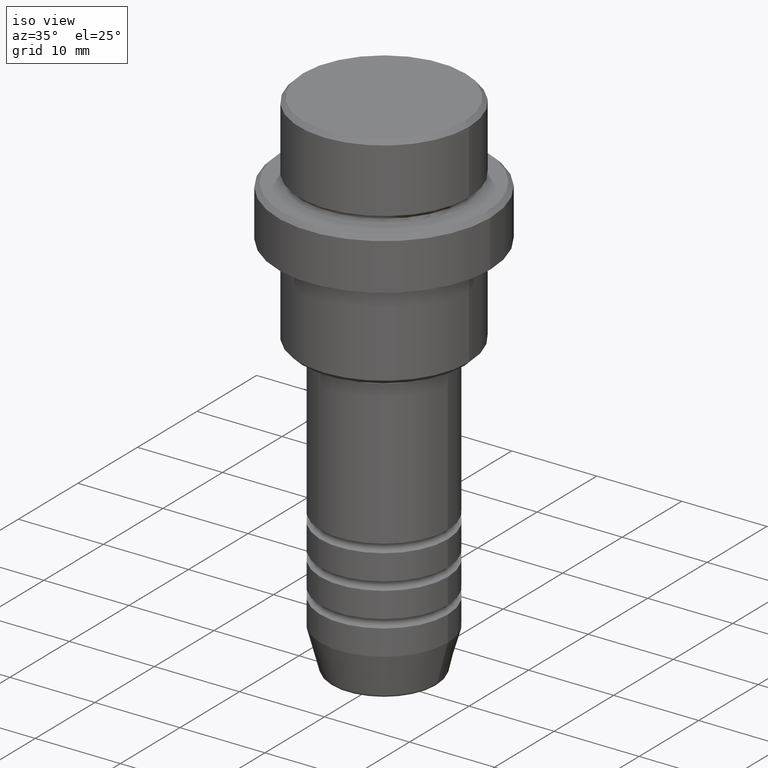
[diagram: clean part render]
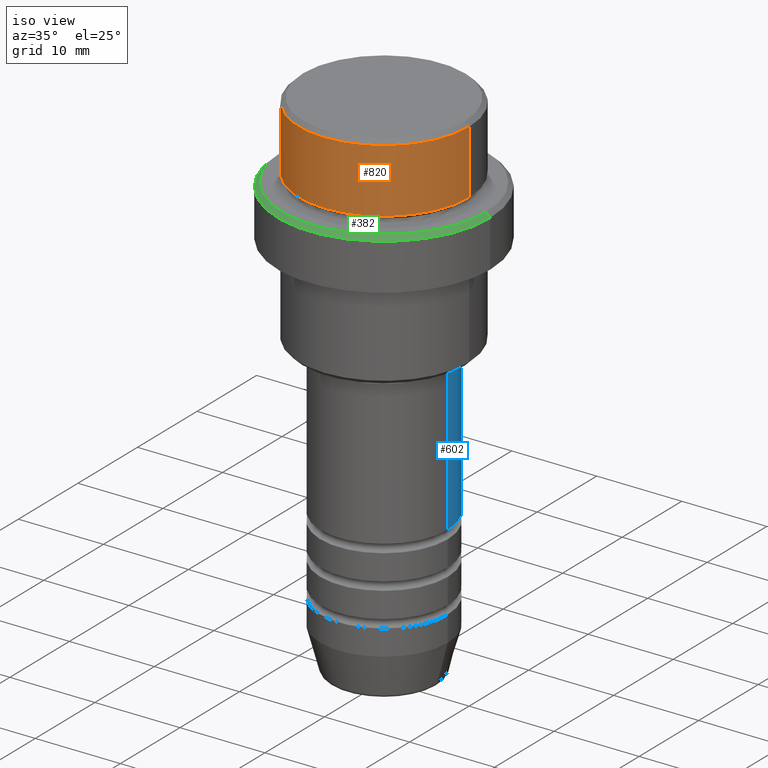
[diagram: same view with three faces highlighted in distinct colors, each labeled with its STEP entity id]
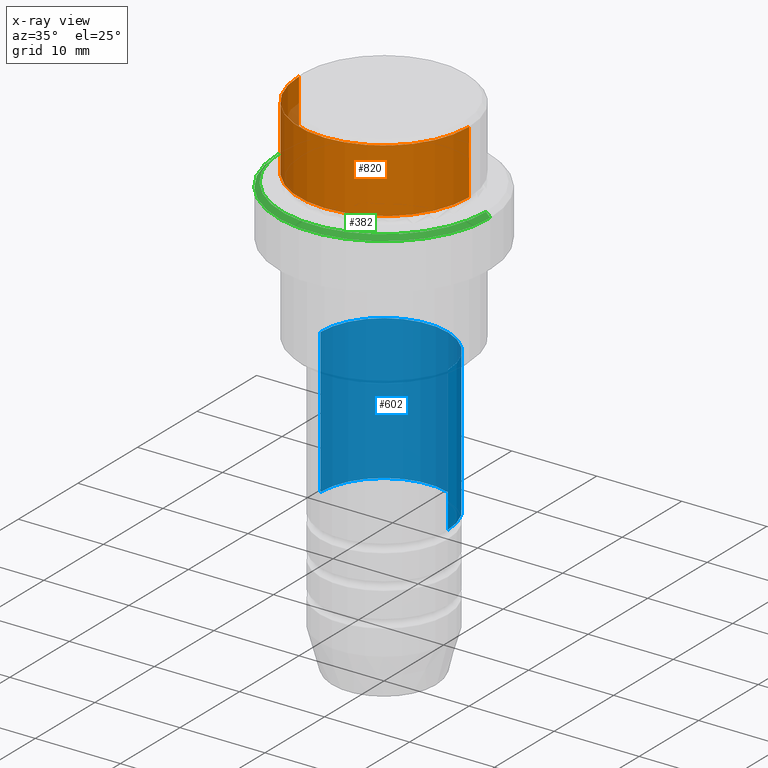
[diagram: x-ray of the same camera — body ghosted, the three highlighted faces saturated]
A machine part, iso view with three faces highlighted in distinct colors.
The next image is the same camera in x-ray (body ghosted, the three faces saturated) — at least one of them is partly hidden behind the body in this view.
Their STEP definitions:

[orange] entity #820 — the highlighted cylindrical surface (partial cylindrical patch) has radius 10 mm, axis along (-0, -0, 1).
#6 = ORIENTED_EDGE ( 'NONE', *, *, #1303, .T. ) ;
#10 = ORIENTED_EDGE ( 'NONE', *, *, #976, .F. ) ;
#23 = CARTESIAN_POINT ( 'NONE',  ( -9.999999999999998224, 1.224646799147353059E-15, 0.000000000000000000 ) ) ;
#24 = ORIENTED_EDGE ( 'NONE', *, *, #987, .T. ) ;
#52 = DIRECTION ( 'NONE',  ( 1.000000000000000000, 0.000000000000000000, 0.000000000000000000 ) ) ;
#77 = VERTEX_POINT ( 'NONE', #447 ) ;
#182 = FACE_OUTER_BOUND ( 'NONE', #1102, .T. ) ;
#225 = VECTOR ( 'NONE', #774, 1000.000000000000000 ) ;
#247 = AXIS2_PLACEMENT_3D ( 'NONE', #612, #309, #52 ) ;
#282 = CARTESIAN_POINT ( 'NONE',  ( 0.000000000000000000, 0.000000000000000000, -0.5000000000000108802 ) ) ;
#309 = DIRECTION ( 'NONE',  ( -0.000000000000000000, -0.000000000000000000, 1.000000000000000000 ) ) ;
#340 = CARTESIAN_POINT ( 'NONE',  ( 9.999999999999998224, 0.000000000000000000, -0.5000000000000108802 ) ) ;
#447 = CARTESIAN_POINT ( 'NONE',  ( 9.999999999999998224, 0.000000000000000000, -7.999999999999998224 ) ) ;
#461 = VECTOR ( 'NONE', #1074, 1000.000000000000000 ) ;
#553 = ORIENTED_EDGE ( 'NONE', *, *, #837, .T. ) ;
#557 = VERTEX_POINT ( 'NONE', #1110 ) ;
#612 = CARTESIAN_POINT ( 'NONE',  ( 0.000000000000000000, 0.000000000000000000, -7.999999999999998224 ) ) ;
#613 = VERTEX_POINT ( 'NONE', #679 ) ;
#627 = CIRCLE ( 'NONE', #247, 9.999999999999998224 ) ;
#668 = LINE ( 'NONE', #23, #225 ) ;
#679 = CARTESIAN_POINT ( 'NONE',  ( -9.999999999999998224, 1.224646799147353059E-15, -0.5000000000000108802 ) ) ;
#741 = CYLINDRICAL_SURFACE ( 'NONE', #1317, 9.999999999999998224 ) ;
#774 = DIRECTION ( 'NONE',  ( -0.000000000000000000, -0.000000000000000000, 1.000000000000000000 ) ) ;
#820 = ADVANCED_FACE ( 'NONE', ( #182 ), #741, .T. ) ;
#837 = EDGE_CURVE ( 'NONE', #557, #77, #627, .T. ) ;
#843 = CARTESIAN_POINT ( 'NONE',  ( 9.999999999999998224, 0.000000000000000000, 0.000000000000000000 ) ) ;
#855 = DIRECTION ( 'NONE',  ( -0.000000000000000000, -0.000000000000000000, 1.000000000000000000 ) ) ;
#973 = AXIS2_PLACEMENT_3D ( 'NONE', #282, #1175, #1057 ) ;
#976 = EDGE_CURVE ( 'NONE', #557, #613, #668, .T. ) ;
#987 = EDGE_CURVE ( 'NONE', #77, #1199, #1386, .T. ) ;
#1057 = DIRECTION ( 'NONE',  ( 1.000000000000000000, 0.000000000000000000, 0.000000000000000000 ) ) ;
#1073 = CARTESIAN_POINT ( 'NONE',  ( 0.000000000000000000, 0.000000000000000000, 0.000000000000000000 ) ) ;
#1074 = DIRECTION ( 'NONE',  ( -0.000000000000000000, -0.000000000000000000, 1.000000000000000000 ) ) ;
#1102 = EDGE_LOOP ( 'NONE', ( #10, #553, #24, #6 ) ) ;
#1110 = CARTESIAN_POINT ( 'NONE',  ( -9.999999999999998224, 1.224646799147353059E-15, -7.999999999999998224 ) ) ;
#1154 = DIRECTION ( 'NONE',  ( 1.000000000000000000, 0.000000000000000000, 0.000000000000000000 ) ) ;
#1175 = DIRECTION ( 'NONE',  ( 0.000000000000000000, 0.000000000000000000, -1.000000000000000000 ) ) ;
#1184 = CIRCLE ( 'NONE', #973, 9.999999999999998224 ) ;
#1199 = VERTEX_POINT ( 'NONE', #340 ) ;
#1303 = EDGE_CURVE ( 'NONE', #1199, #613, #1184, .T. ) ;
#1317 = AXIS2_PLACEMENT_3D ( 'NONE', #1073, #855, #1154 ) ;
#1386 = LINE ( 'NONE', #843, #461 ) ;

[blue] entity #602 — the highlighted cylindrical surface (partial cylindrical patch) has radius 7.5 mm, axis along (-0, -0, 1).
#1 = EDGE_CURVE ( 'NONE', #463, #325, #910, .T. ) ;
#149 = EDGE_CURVE ( 'NONE', #1103, #325, #1294, .T. ) ;
#154 = CIRCLE ( 'NONE', #1135, 7.500000000000000000 ) ;
#228 = AXIS2_PLACEMENT_3D ( 'NONE', #359, #1003, #689 ) ;
#306 = DIRECTION ( 'NONE',  ( -0.000000000000000000, -0.000000000000000000, 1.000000000000000000 ) ) ;
#310 = CARTESIAN_POINT ( 'NONE',  ( 0.000000000000000000, 0.000000000000000000, -43.99999999999989342 ) ) ;
#325 = VERTEX_POINT ( 'NONE', #1375 ) ;
#359 = CARTESIAN_POINT ( 'NONE',  ( 0.000000000000000000, 0.000000000000000000, -27.00000000000000355 ) ) ;
#451 = ORIENTED_EDGE ( 'NONE', *, *, #1370, .T. ) ;
#463 = VERTEX_POINT ( 'NONE', #924 ) ;
#512 = DIRECTION ( 'NONE',  ( -0.000000000000000000, -0.000000000000000000, 1.000000000000000000 ) ) ;
#533 = ORIENTED_EDGE ( 'NONE', *, *, #1055, .F. ) ;
#544 = AXIS2_PLACEMENT_3D ( 'NONE', #703, #1141, #1027 ) ;
#602 = ADVANCED_FACE ( 'NONE', ( #1229 ), #1132, .T. ) ;
#626 = DIRECTION ( 'NONE',  ( 1.000000000000000000, 0.000000000000000000, 0.000000000000000000 ) ) ;
#644 = CARTESIAN_POINT ( 'NONE',  ( 7.500000000000000000, 0.000000000000000000, -27.00000000000000355 ) ) ;
#689 = DIRECTION ( 'NONE',  ( 1.000000000000000000, 0.000000000000000000, 0.000000000000000000 ) ) ;
#703 = CARTESIAN_POINT ( 'NONE',  ( 0.000000000000000000, 0.000000000000000000, 0.000000000000000000 ) ) ;
#910 = LINE ( 'NONE', #1047, #945 ) ;
#917 = DIRECTION ( 'NONE',  ( -0.000000000000000000, -0.000000000000000000, 1.000000000000000000 ) ) ;
#924 = CARTESIAN_POINT ( 'NONE',  ( -7.500000000000000000, 9.184850993605147944E-16, -43.99999999999989342 ) ) ;
#945 = VECTOR ( 'NONE', #512, 1000.000000000000000 ) ;
#958 = ORIENTED_EDGE ( 'NONE', *, *, #1, .T. ) ;
#959 = VERTEX_POINT ( 'NONE', #1247 ) ;
#1003 = DIRECTION ( 'NONE',  ( -0.000000000000000000, -0.000000000000000000, 1.000000000000000000 ) ) ;
#1027 = DIRECTION ( 'NONE',  ( 1.000000000000000000, 0.000000000000000000, 0.000000000000000000 ) ) ;
#1047 = CARTESIAN_POINT ( 'NONE',  ( -7.500000000000000000, 9.184850993605147944E-16, 0.000000000000000000 ) ) ;
#1055 = EDGE_CURVE ( 'NONE', #959, #1103, #1415, .T. ) ;
#1092 = EDGE_LOOP ( 'NONE', ( #451, #958, #1172, #533 ) ) ;
#1103 = VERTEX_POINT ( 'NONE', #644 ) ;
#1132 = CYLINDRICAL_SURFACE ( 'NONE', #544, 7.500000000000000000 ) ;
#1135 = AXIS2_PLACEMENT_3D ( 'NONE', #310, #917, #626 ) ;
#1141 = DIRECTION ( 'NONE',  ( -0.000000000000000000, -0.000000000000000000, 1.000000000000000000 ) ) ;
#1172 = ORIENTED_EDGE ( 'NONE', *, *, #149, .F. ) ;
#1188 = CARTESIAN_POINT ( 'NONE',  ( 7.500000000000000000, 0.000000000000000000, 0.000000000000000000 ) ) ;
#1229 = FACE_OUTER_BOUND ( 'NONE', #1092, .T. ) ;
#1241 = VECTOR ( 'NONE', #306, 1000.000000000000000 ) ;
#1247 = CARTESIAN_POINT ( 'NONE',  ( 7.500000000000000000, 0.000000000000000000, -43.99999999999989342 ) ) ;
#1294 = CIRCLE ( 'NONE', #228, 7.500000000000000000 ) ;
#1370 = EDGE_CURVE ( 'NONE', #959, #463, #154, .T. ) ;
#1375 = CARTESIAN_POINT ( 'NONE',  ( -7.500000000000000000, 9.184850993605147944E-16, -27.00000000000000355 ) ) ;
#1415 = LINE ( 'NONE', #1188, #1241 ) ;

[green] entity #382 — the highlighted conical surface has half-angle 45 deg.
#18 = AXIS2_PLACEMENT_3D ( 'NONE', #1150, #1043, #661 ) ;
#37 = CARTESIAN_POINT ( 'NONE',  ( -12.50000000000000000, 1.530808498934191521E-15, -9.500000000000007105 ) ) ;
#113 = VERTEX_POINT ( 'NONE', #37 ) ;
#207 = VERTEX_POINT ( 'NONE', #968 ) ;
#212 = ORIENTED_EDGE ( 'NONE', *, *, #994, .F. ) ;
#253 = CARTESIAN_POINT ( 'NONE',  ( 11.99999999999999645, 1.500192328955507537E-15, -9.000000000000001776 ) ) ;
#257 = DIRECTION ( 'NONE',  ( -0.7071067811865463515, 0.000000000000000000, -0.7071067811865487940 ) ) ;
#259 = VERTEX_POINT ( 'NONE', #253 ) ;
#307 = VERTEX_POINT ( 'NONE', #606 ) ;
#332 = DIRECTION ( 'NONE',  ( 1.000000000000000000, 0.000000000000000000, 0.000000000000000000 ) ) ;
#346 = EDGE_CURVE ( 'NONE', #207, #259, #505, .T. ) ;
#382 = ADVANCED_FACE ( 'NONE', ( #1412 ), #890, .T. ) ;
#421 = CARTESIAN_POINT ( 'NONE',  ( 0.000000000000000000, 0.000000000000000000, -9.500000000000007105 ) ) ;
#496 = CARTESIAN_POINT ( 'NONE',  ( 11.99999999999999645, 1.469576158976823553E-15, -9.000000000000001776 ) ) ;
#501 = CARTESIAN_POINT ( 'NONE',  ( 0.000000000000000000, 0.000000000000000000, -9.000000000000001776 ) ) ;
#505 = CIRCLE ( 'NONE', #18, 11.99999999999999645 ) ;
#545 = LINE ( 'NONE', #1330, #577 ) ;
#577 = VECTOR ( 'NONE', #257, 1000.000000000000000 ) ;
#606 = CARTESIAN_POINT ( 'NONE',  ( 12.50000000000000000, 0.000000000000000000, -9.500000000000007105 ) ) ;
#661 = DIRECTION ( 'NONE',  ( 1.000000000000000000, 0.000000000000000000, 0.000000000000000000 ) ) ;
#718 = AXIS2_PLACEMENT_3D ( 'NONE', #501, #1358, #822 ) ;
#735 = EDGE_CURVE ( 'NONE', #207, #113, #545, .T. ) ;
#744 = EDGE_CURVE ( 'NONE', #259, #307, #1122, .T. ) ;
#822 = DIRECTION ( 'NONE',  ( -1.000000000000000000, 0.000000000000000000, 0.000000000000000000 ) ) ;
#890 = CONICAL_SURFACE ( 'NONE', #718, 11.99999999999999645, 0.7853981633974466137 ) ;
#968 = CARTESIAN_POINT ( 'NONE',  ( -11.99999999999999645, 0.000000000000000000, -9.000000000000001776 ) ) ;
#994 = EDGE_CURVE ( 'NONE', #307, #113, #1134, .T. ) ;
#1043 = DIRECTION ( 'NONE',  ( -0.000000000000000000, -0.000000000000000000, 1.000000000000000000 ) ) ;
#1122 = LINE ( 'NONE', #496, #1315 ) ;
#1134 = CIRCLE ( 'NONE', #1205, 12.50000000000000000 ) ;
#1150 = CARTESIAN_POINT ( 'NONE',  ( 0.000000000000000000, 0.000000000000000000, -9.000000000000001776 ) ) ;
#1191 = DIRECTION ( 'NONE',  ( 0.000000000000000000, 0.000000000000000000, -1.000000000000000000 ) ) ;
#1205 = AXIS2_PLACEMENT_3D ( 'NONE', #421, #1191, #332 ) ;
#1279 = ORIENTED_EDGE ( 'NONE', *, *, #346, .F. ) ;
#1314 = ORIENTED_EDGE ( 'NONE', *, *, #735, .T. ) ;
#1315 = VECTOR ( 'NONE', #1346, 1000.000000000000000 ) ;
#1330 = CARTESIAN_POINT ( 'NONE',  ( -11.99999999999999645, 0.000000000000000000, -9.000000000000001776 ) ) ;
#1339 = ORIENTED_EDGE ( 'NONE', *, *, #744, .F. ) ;
#1346 = DIRECTION ( 'NONE',  ( 0.7071067811865463515, 8.659560562354919300E-17, -0.7071067811865487940 ) ) ;
#1358 = DIRECTION ( 'NONE',  ( 0.000000000000000000, 0.000000000000000000, -1.000000000000000000 ) ) ;
#1367 = EDGE_LOOP ( 'NONE', ( #1339, #1279, #1314, #212 ) ) ;
#1412 = FACE_OUTER_BOUND ( 'NONE', #1367, .T. ) ;